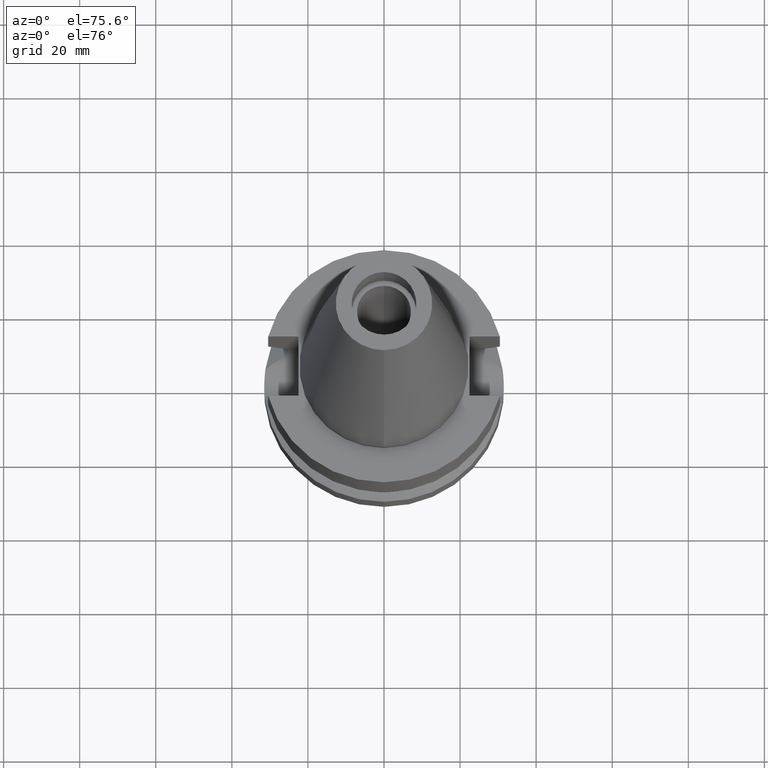
[diagram: clean part render]
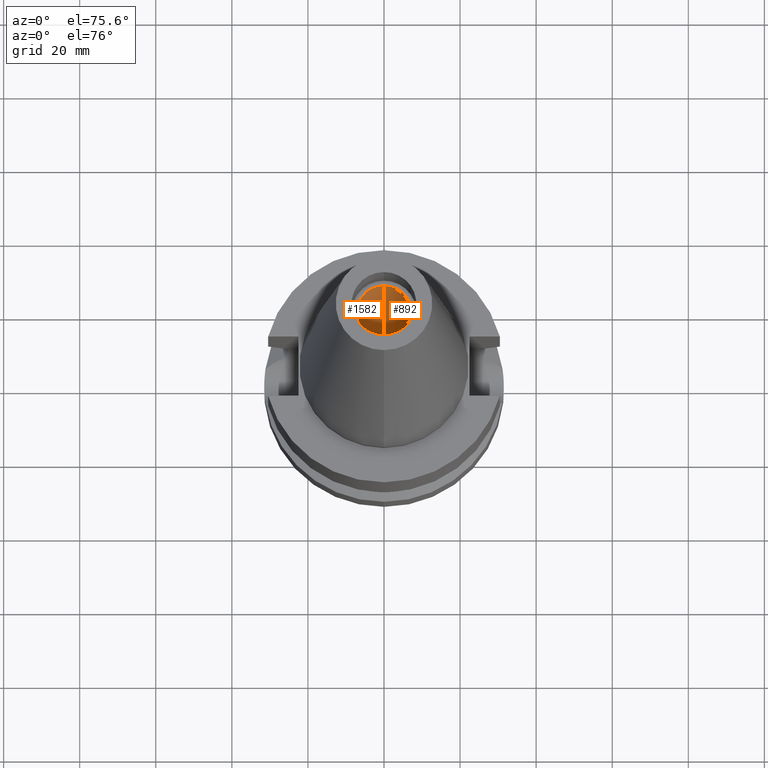
[diagram: same view with one multi-face feature highlighted, each face labeled with its STEP entity id]
A machine part, auxiliary view. The highlighted faces form ONE feature: a constant-radius fillet chain: 2 tangent blend faces with common blend radius 7.1 mm. The faces share edges in the B-rep.
Their STEP definitions:
[1] entity #892 (Cylinder):
#207 = ORIENTED_EDGE ( 'NONE', *, *, #567, .F. ) ;
#463 = LINE ( 'NONE', #1619, #527 ) ;
#527 = VECTOR ( 'NONE', #1357, 1000.000000000000000 ) ;
#567 = EDGE_CURVE ( 'NONE', #1105, #2575, #1478, .T. ) ;
#708 = VERTEX_POINT ( 'NONE', #2565 ) ;
#737 = ORIENTED_EDGE ( 'NONE', *, *, #1810, .T. ) ;
#781 = CARTESIAN_POINT ( 'NONE',  ( 0.0000000000000000000, 2.127456419478999887E-14, 1.705302565823999875E-13 ) ) ;
#892 = ADVANCED_FACE ( 'NONE', ( #2636 ), #1990, .F. ) ;
#981 = DIRECTION ( 'NONE',  ( 0.0000000000000000000, 0.0000000000000000000, 1.000000000000000000 ) ) ;
#1026 = CARTESIAN_POINT ( 'NONE',  ( 0.0000000000000000000, -7.100000000000000533, 56.39999999999999858 ) ) ;
#1051 = DIRECTION ( 'NONE',  ( 0.0000000000000000000, 0.0000000000000000000, 1.000000000000000000 ) ) ;
#1105 = VERTEX_POINT ( 'NONE', #2067 ) ;
#1147 = EDGE_LOOP ( 'NONE', ( #207, #737, #2762, #2773 ) ) ;
#1212 = CARTESIAN_POINT ( 'NONE',  ( 0.0000000000000000000, 7.100000000000000533, 1.563194018672000033E-13 ) ) ;
#1226 = VERTEX_POINT ( 'NONE', #1026 ) ;
#1251 = DIRECTION ( 'NONE',  ( 0.0000000000000000000, 0.0000000000000000000, -1.000000000000000000 ) ) ;
#1286 = AXIS2_PLACEMENT_3D ( 'NONE', #2880, #1251, #2198 ) ;
#1357 = DIRECTION ( 'NONE',  ( 0.0000000000000000000, 0.0000000000000000000, 1.000000000000000000 ) ) ;
#1478 = CIRCLE ( 'NONE', #1883, 7.100000000000000533 ) ;
#1524 = VECTOR ( 'NONE', #981, 1000.000000000000000 ) ;
#1541 = EDGE_CURVE ( 'NONE', #2575, #708, #2613, .T. ) ;
#1619 = CARTESIAN_POINT ( 'NONE',  ( 0.0000000000000000000, -7.100000000000000533, 1.563194018672000033E-13 ) ) ;
#1667 = EDGE_CURVE ( 'NONE', #1226, #708, #2234, .T. ) ;
#1699 = DIRECTION ( 'NONE',  ( 0.0000000000000000000, 0.0000000000000000000, 1.000000000000000000 ) ) ;
#1810 = EDGE_CURVE ( 'NONE', #1105, #1226, #463, .T. ) ;
#1883 = AXIS2_PLACEMENT_3D ( 'NONE', #781, #1699, #2639 ) ;
#1990 = CYLINDRICAL_SURFACE ( 'NONE', #1286, 7.100000000000000533 ) ;
#1993 = DIRECTION ( 'NONE',  ( 0.0000000000000000000, -1.000000000000000000, 0.0000000000000000000 ) ) ;
#2067 = CARTESIAN_POINT ( 'NONE',  ( 0.0000000000000000000, -7.100000000000000533, 1.563194018672000033E-13 ) ) ;
#2198 = DIRECTION ( 'NONE',  ( 0.0000000000000000000, -1.000000000000000000, 0.0000000000000000000 ) ) ;
#2234 = CIRCLE ( 'NONE', #2336, 7.100000000000000533 ) ;
#2336 = AXIS2_PLACEMENT_3D ( 'NONE', #2704, #1051, #1993 ) ;
#2454 = CARTESIAN_POINT ( 'NONE',  ( 0.0000000000000000000, 7.100000000000000533, 1.563194018672000033E-13 ) ) ;
#2565 = CARTESIAN_POINT ( 'NONE',  ( 0.0000000000000000000, 7.100000000000000533, 56.39999999999999858 ) ) ;
#2575 = VERTEX_POINT ( 'NONE', #2454 ) ;
#2613 = LINE ( 'NONE', #1212, #1524 ) ;
#2636 = FACE_OUTER_BOUND ( 'NONE', #1147, .T. ) ;
#2639 = DIRECTION ( 'NONE',  ( 0.0000000000000000000, -1.000000000000000000, 0.0000000000000000000 ) ) ;
#2704 = CARTESIAN_POINT ( 'NONE',  ( 0.0000000000000000000, 2.127456419478999887E-14, 56.39999999999999858 ) ) ;
#2762 = ORIENTED_EDGE ( 'NONE', *, *, #1667, .T. ) ;
#2773 = ORIENTED_EDGE ( 'NONE', *, *, #1541, .F. ) ;
#2880 = CARTESIAN_POINT ( 'NONE',  ( 0.0000000000000000000, 2.127456419478999887E-14, 73.71999999999999886 ) ) ;
[2] entity #1582 (Cylinder):
#171 = AXIS2_PLACEMENT_3D ( 'NONE', #772, #1232, #2383 ) ;
#463 = LINE ( 'NONE', #1619, #527 ) ;
#527 = VECTOR ( 'NONE', #1357, 1000.000000000000000 ) ;
#696 = DIRECTION ( 'NONE',  ( 0.0000000000000000000, -1.000000000000000000, 0.0000000000000000000 ) ) ;
#708 = VERTEX_POINT ( 'NONE', #2565 ) ;
#772 = CARTESIAN_POINT ( 'NONE',  ( 0.0000000000000000000, 2.127456419478999887E-14, 56.39999999999999858 ) ) ;
#803 = DIRECTION ( 'NONE',  ( 0.0000000000000000000, 0.0000000000000000000, -1.000000000000000000 ) ) ;
#981 = DIRECTION ( 'NONE',  ( 0.0000000000000000000, 0.0000000000000000000, 1.000000000000000000 ) ) ;
#1026 = CARTESIAN_POINT ( 'NONE',  ( 0.0000000000000000000, -7.100000000000000533, 56.39999999999999858 ) ) ;
#1056 = ORIENTED_EDGE ( 'NONE', *, *, #1810, .F. ) ;
#1105 = VERTEX_POINT ( 'NONE', #2067 ) ;
#1212 = CARTESIAN_POINT ( 'NONE',  ( 0.0000000000000000000, 7.100000000000000533, 1.563194018672000033E-13 ) ) ;
#1226 = VERTEX_POINT ( 'NONE', #1026 ) ;
#1232 = DIRECTION ( 'NONE',  ( 0.0000000000000000000, 0.0000000000000000000, 1.000000000000000000 ) ) ;
#1298 = ORIENTED_EDGE ( 'NONE', *, *, #2238, .T. ) ;
#1357 = DIRECTION ( 'NONE',  ( 0.0000000000000000000, 0.0000000000000000000, 1.000000000000000000 ) ) ;
#1461 = CIRCLE ( 'NONE', #171, 7.100000000000000533 ) ;
#1504 = FACE_OUTER_BOUND ( 'NONE', #2641, .T. ) ;
#1524 = VECTOR ( 'NONE', #981, 1000.000000000000000 ) ;
#1541 = EDGE_CURVE ( 'NONE', #2575, #708, #2613, .T. ) ;
#1582 = ADVANCED_FACE ( 'NONE', ( #1504 ), #1790, .F. ) ;
#1619 = CARTESIAN_POINT ( 'NONE',  ( 0.0000000000000000000, -7.100000000000000533, 1.563194018672000033E-13 ) ) ;
#1706 = AXIS2_PLACEMENT_3D ( 'NONE', #2556, #2076, #696 ) ;
#1790 = CYLINDRICAL_SURFACE ( 'NONE', #2475, 7.100000000000000533 ) ;
#1810 = EDGE_CURVE ( 'NONE', #1105, #1226, #463, .T. ) ;
#2067 = CARTESIAN_POINT ( 'NONE',  ( 0.0000000000000000000, -7.100000000000000533, 1.563194018672000033E-13 ) ) ;
#2076 = DIRECTION ( 'NONE',  ( 0.0000000000000000000, 0.0000000000000000000, -1.000000000000000000 ) ) ;
#2238 = EDGE_CURVE ( 'NONE', #1105, #2575, #2756, .T. ) ;
#2383 = DIRECTION ( 'NONE',  ( 0.0000000000000000000, 1.000000000000000000, 0.0000000000000000000 ) ) ;
#2454 = CARTESIAN_POINT ( 'NONE',  ( 0.0000000000000000000, 7.100000000000000533, 1.563194018672000033E-13 ) ) ;
#2475 = AXIS2_PLACEMENT_3D ( 'NONE', #2883, #803, #2723 ) ;
#2556 = CARTESIAN_POINT ( 'NONE',  ( 0.0000000000000000000, 2.127456419478999887E-14, 1.705302565823999875E-13 ) ) ;
#2565 = CARTESIAN_POINT ( 'NONE',  ( 0.0000000000000000000, 7.100000000000000533, 56.39999999999999858 ) ) ;
#2575 = VERTEX_POINT ( 'NONE', #2454 ) ;
#2613 = LINE ( 'NONE', #1212, #1524 ) ;
#2641 = EDGE_LOOP ( 'NONE', ( #2705, #1056, #1298, #2771 ) ) ;
#2705 = ORIENTED_EDGE ( 'NONE', *, *, #2857, .T. ) ;
#2723 = DIRECTION ( 'NONE',  ( 0.0000000000000000000, -1.000000000000000000, 0.0000000000000000000 ) ) ;
#2756 = CIRCLE ( 'NONE', #1706, 7.100000000000000533 ) ;
#2771 = ORIENTED_EDGE ( 'NONE', *, *, #1541, .T. ) ;
#2857 = EDGE_CURVE ( 'NONE', #708, #1226, #1461, .T. ) ;
#2883 = CARTESIAN_POINT ( 'NONE',  ( 0.0000000000000000000, 2.127456419478999887E-14, 73.71999999999999886 ) ) ;